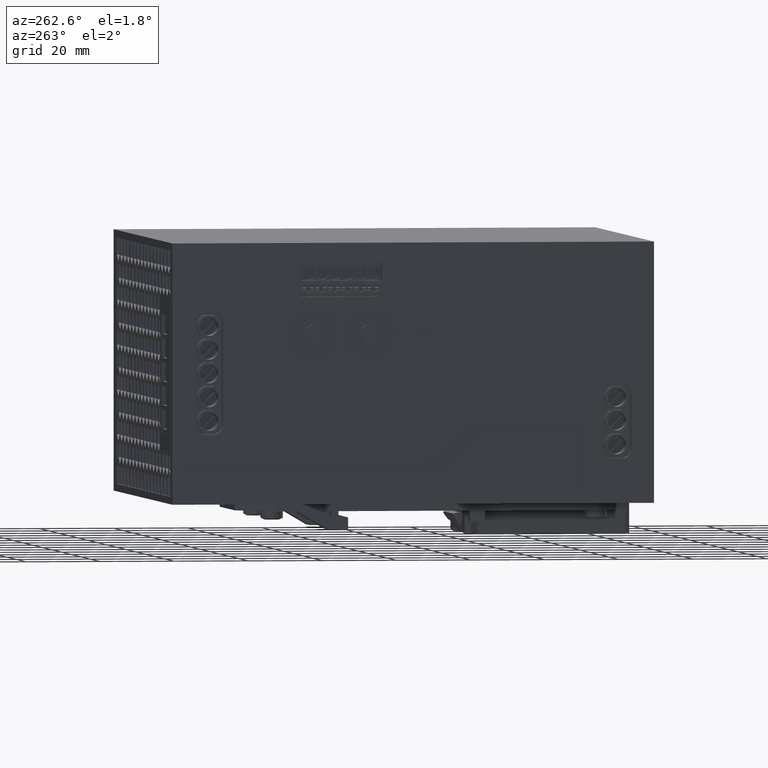
[diagram: clean part render]
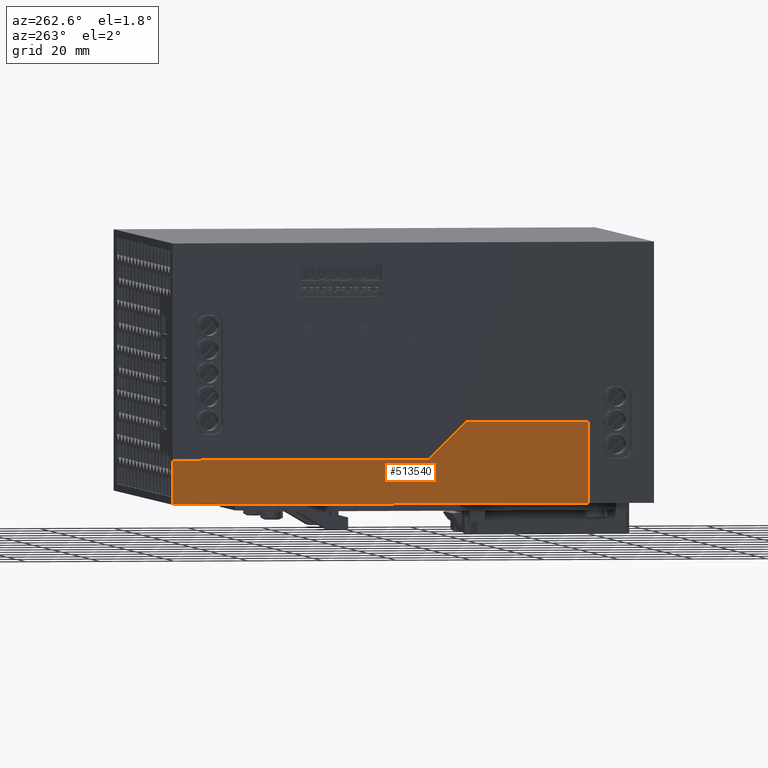
[diagram: same view with one face highlighted and labeled with its STEP entity id]
A machine part, auxiliary view. The second image highlights one B-rep face of the part: STEP entity #513540.
In plain terms, the highlighted planar face has unit normal (-1, 0, 0).
Its self-contained STEP definition (entity closure, byte-faithful):
#120=CARTESIAN_POINT('',(21.9249998753199,122.249999999992,
78.4587186950105));
#130=VERTEX_POINT('',#120);
#160=CARTESIAN_POINT('',(-56.5337188196906,122.249999999992,0.));
#170=DIRECTION('',(0.707106781186547,0.,0.707106781186548));
#180=VECTOR('',#170,1.);
#190=LINE('',#160,#180);
#200=CARTESIAN_POINT('',(11.9335354708757,122.249999999992,
68.4672542905663));
#210=VERTEX_POINT('',#200);
#220=EDGE_CURVE('',#210,#130,#190,.T.);
#1060=CARTESIAN_POINT('',(21.9249998753199,122.249999999992,
111.546849890801));
#1070=VERTEX_POINT('',#1060);
#1100=CARTESIAN_POINT('',(21.9249998753199,122.249999999992,0.));
#1110=DIRECTION('',(0.,0.,1.));
#1120=VECTOR('',#1110,1.);
#1130=LINE('',#1100,#1120);
#1140=EDGE_CURVE('',#130,#1070,#1130,.T.);
#1380=CARTESIAN_POINT('',(0.,122.249999999992,111.546849890801));
#1390=DIRECTION('',(-1.,0.,0.));
#1400=VECTOR('',#1390,1.);
#1410=LINE('',#1380,#1400);
#1420=CARTESIAN_POINT('',(0.,122.249999999992,111.546849890801));
#1430=VERTEX_POINT('',#1420);
#1440=EDGE_CURVE('',#1070,#1430,#1410,.T.);
#2230=CARTESIAN_POINT('',(11.9335354708757,122.249999999992,0.));
#2240=DIRECTION('',(0.,0.,-1.));
#2250=VECTOR('',#2240,1.);
#2260=LINE('',#2230,#2250);
#2270=CARTESIAN_POINT('',(11.9335354708757,122.249999999992,
-0.853150109198594));
#2280=VERTEX_POINT('',#2270);
#2290=EDGE_CURVE('',#210,#2280,#2260,.T.);
#85030=CARTESIAN_POINT('',(0.,122.249999999992,-0.853150109198594));
#85040=VERTEX_POINT('',#85030);
#85070=CARTESIAN_POINT('',(0.,122.249999999992,0.));
#85080=DIRECTION('',(0.,0.,-1.));
#85090=VECTOR('',#85080,1.);
#85100=LINE('',#85070,#85090);
#85110=EDGE_CURVE('',#1430,#85040,#85100,.T.);
#513360=CARTESIAN_POINT('',(-0.551274996882999,122.249999999992,
114.359999890801));
#513370=DIRECTION('',(-0.,1.,0.));
#513380=DIRECTION('',(1.,0.,0.));
#513390=AXIS2_PLACEMENT_3D('',#513360,#513370,#513380);
#513400=PLANE('',#513390);
#513410=ORIENTED_EDGE('',*,*,#2290,.T.);
#513420=ORIENTED_EDGE('',*,*,#220,.F.);
#513430=ORIENTED_EDGE('',*,*,#1140,.F.);
#513440=ORIENTED_EDGE('',*,*,#1440,.F.);
#513450=ORIENTED_EDGE('',*,*,#85110,.F.);
#513460=CARTESIAN_POINT('',(0.,122.249999999992,-0.853150109198594));
#513470=DIRECTION('',(-1.,0.,0.));
#513480=VECTOR('',#513470,1.);
#513490=LINE('',#513460,#513480);
#513500=EDGE_CURVE('',#2280,#85040,#513490,.T.);
#513510=ORIENTED_EDGE('',*,*,#513500,.T.);
#513520=EDGE_LOOP('',(#513510,#513450,#513440,#513430,#513420,#513410));
#513530=FACE_OUTER_BOUND('',#513520,.T.);
#513540=ADVANCED_FACE('',(#513530),#513400,.T.);